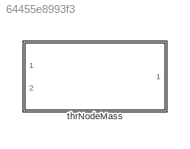
MODEL slx_64455e8993f3
KIND library
CONFIG AbsTol = auto
CONFIG EnableMultiTasking = off
CONFIG FixedStep = auto
CONFIG MaxStep = auto
CONFIG MinStep = auto
CONFIG RelTol = 1e-3
CONFIG SampleTimeConstraint = Unconstrained
CONFIG Solver = VariableStepAuto
CONFIG SolverName = VariableStepAuto
CONFIG StartTime = 0.0
CONFIG StopTime = 10.0
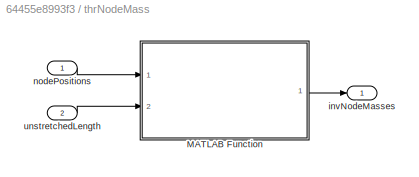
BLOCK [SubSystem] thrNodeMass
  MinAlgLoopOccurrences = on
  Ports = [2, 1]
  RequestExecContextInheritance = off
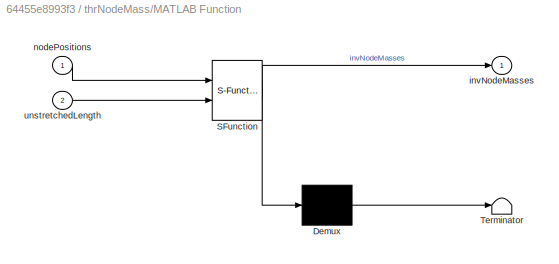
BLOCK [SubSystem] thrNodeMass/MATLAB Function
  ErrorFcn = Stateflow.Translate.translate
  PermitHierarchicalResolution = ExplicitOnly
  Ports = [2, 1]
  RequestExecContextInheritance = off
  SFBlockType = MATLAB Function
  TreatAsAtomicUnit = on
BLOCK [Demux] thrNodeMass/MATLAB Function/ Demux 
  Outputs = 1
  Ports = [1, 1]
BLOCK [S-Function] thrNodeMass/MATLAB Function/ SFunction 
  EnableBusSupport = off
  FunctionName = sf_sfun
  Parameters = diameter,tetherDensity
  PortCounts = [2 2]
  Ports = [2, 2]
  SFcnIsStateOwnerBlock = off
  SFunctionDeploymentMode = off
  Tag = Stateflow S-Function thrNodeMass_ul 2
BLOCK [Terminator] thrNodeMass/MATLAB Function/ Terminator 
BLOCK [Outport] thrNodeMass/MATLAB Function/invNodeMasses
  IconDisplay = Port number
BLOCK [Inport] thrNodeMass/MATLAB Function/nodePositions
  IconDisplay = Port number
BLOCK [Inport] thrNodeMass/MATLAB Function/unstretchedLength
  IconDisplay = Port number
  Port = 2
BLOCK [Outport] thrNodeMass/invNodeMasses
  IconDisplay = Port number
BLOCK [Inport] thrNodeMass/nodePositions
  IconDisplay = Port number
BLOCK [Inport] thrNodeMass/unstretchedLength
  IconDisplay = Port number
  Port = 2
LINE thrNodeMass/MATLAB Function:1 -> thrNodeMass/invNodeMasses:1
LINE thrNodeMass/nodePositions:1 -> thrNodeMass/MATLAB Function:1
LINE thrNodeMass/unstretchedLength:1 -> thrNodeMass/MATLAB Function:2
CHART thrNodeMass/MATLAB Function states=1 transitions=1
  STATE_LABEL 'eML_blk_kernel()'
  STATE_LABEL "SCRIPT:\nfunction invNodeMasses  = fcn(...\n    nodePositions,unstretchedLength,...\n    tetherDensity, diameter)\n\n% In this notation, N is the number of nodes\n\n% Length of each link 1xN-1\nlinkLengths = sqrt(sum(diff(nodePositions,1,2).^2));\n\n% Total length of all links, assuming they're straight lines, scalar\nnumericalTotalLength = sum(linkLengths);\n\n% Total volume based on unspooled length, scalar\n...<+492ch>"
